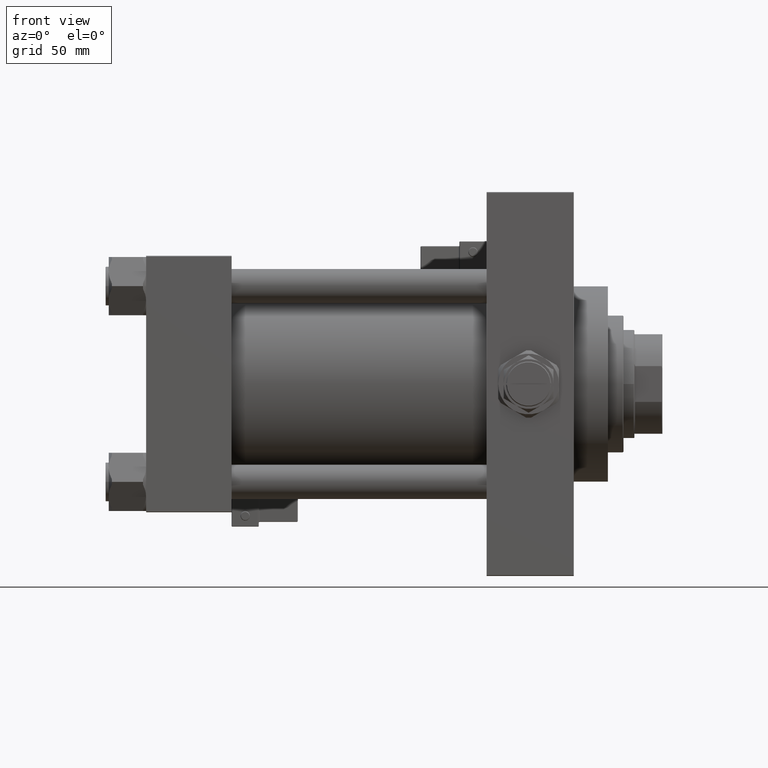
[diagram: clean part render]
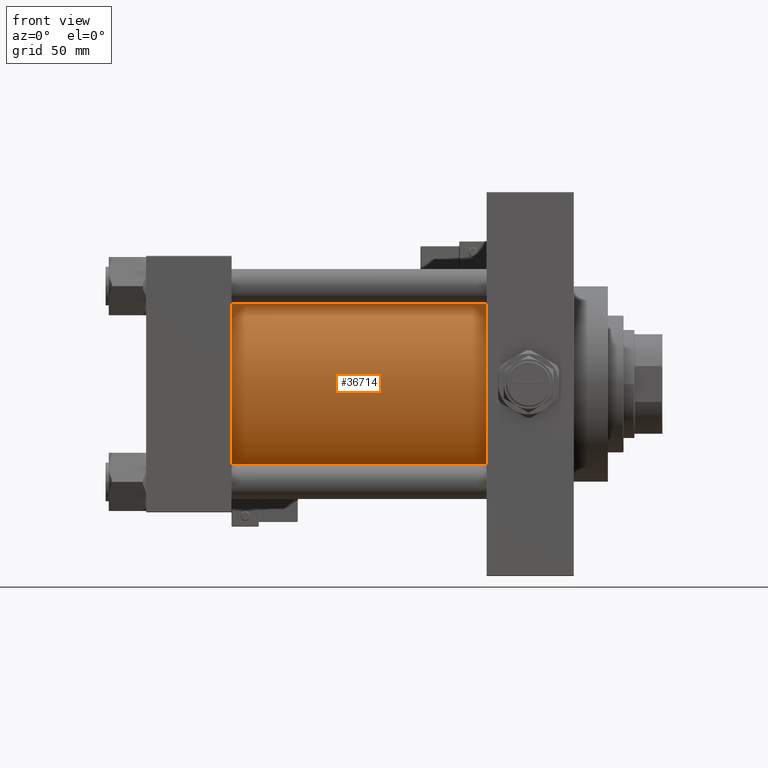
[diagram: same view with one face highlighted and labeled with its STEP entity id]
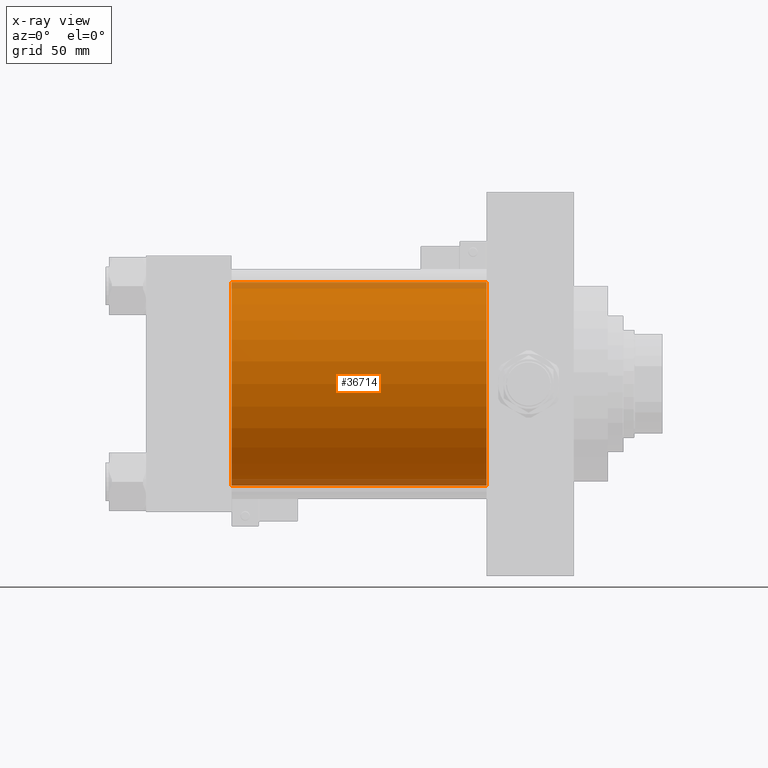
[diagram: x-ray of the same camera — body ghosted, the highlighted face saturated]
A machine part, front view. The second image highlights one B-rep face of the part: STEP entity #36714.
The next image is the same camera in x-ray: the body ghosted, the highlighted face saturated — about 6% of this face is hidden behind the body in this view.
In plain terms, the highlighted cylindrical surface (partial cylindrical patch) has radius 65.5 mm, axis along (-1, -0, -0).
Its self-contained STEP definition (entity closure, byte-faithful):
#402 = VERTEX_POINT ( 'NONE', #31554 ) ;
#928 = CARTESIAN_POINT ( 'NONE',  ( 54.99999999999999289, -2.602085213965210642E-15, 0.000000000000000000 ) ) ;
#1482 = VERTEX_POINT ( 'NONE', #23220 ) ;
#2633 = CARTESIAN_POINT ( 'NONE',  ( 219.0000000000000000, 5.419351320449954973E-15, -65.50000000000001421 ) ) ;
#2948 = DIRECTION ( 'NONE',  ( 0.000000000000000000, 0.000000000000000000, 1.000000000000000000 ) ) ;
#3754 = LINE ( 'NONE', #43409, #43405 ) ;
#6001 = AXIS2_PLACEMENT_3D ( 'NONE', #9406, #48293, #33414 ) ;
#6867 = CARTESIAN_POINT ( 'NONE',  ( 219.0000000000000000, -2.602085213965210642E-15, 0.000000000000000000 ) ) ;
#7153 = DIRECTION ( 'NONE',  ( -1.000000000000000000, -0.000000000000000000, -0.000000000000000000 ) ) ;
#7472 = ORIENTED_EDGE ( 'NONE', *, *, #26093, .F. ) ;
#7640 = CARTESIAN_POINT ( 'NONE',  ( 54.99999999999999289, 5.419351320449954973E-15, -65.50000000000001421 ) ) ;
#9406 = CARTESIAN_POINT ( 'NONE',  ( 219.0000000000000000, -2.602085213965210642E-15, 0.000000000000000000 ) ) ;
#13120 = EDGE_LOOP ( 'NONE', ( #26748, #7472, #32037, #23436 ) ) ;
#16146 = VERTEX_POINT ( 'NONE', #48715 ) ;
#16343 = DIRECTION ( 'NONE',  ( 1.000000000000000000, -0.000000000000000000, -0.000000000000000000 ) ) ;
#21109 = EDGE_CURVE ( 'NONE', #1482, #16146, #3754, .T. ) ;
#23220 = CARTESIAN_POINT ( 'NONE',  ( 219.0000000000000000, -2.602085213965210642E-15, 65.50000000000001421 ) ) ;
#23436 = ORIENTED_EDGE ( 'NONE', *, *, #29517, .T. ) ;
#24358 = CIRCLE ( 'NONE', #6001, 65.50000000000001421 ) ;
#25070 = EDGE_CURVE ( 'NONE', #402, #34715, #50115, .T. ) ;
#26093 = EDGE_CURVE ( 'NONE', #1482, #402, #24358, .T. ) ;
#26715 = FACE_OUTER_BOUND ( 'NONE', #13120, .T. ) ;
#26748 = ORIENTED_EDGE ( 'NONE', *, *, #25070, .F. ) ;
#28639 = CIRCLE ( 'NONE', #37779, 65.50000000000001421 ) ;
#29517 = EDGE_CURVE ( 'NONE', #16146, #34715, #28639, .T. ) ;
#31554 = CARTESIAN_POINT ( 'NONE',  ( 219.0000000000000000, 5.419351320449954973E-15, -65.50000000000001421 ) ) ;
#32037 = ORIENTED_EDGE ( 'NONE', *, *, #21109, .T. ) ;
#33414 = DIRECTION ( 'NONE',  ( 0.000000000000000000, 0.000000000000000000, -1.000000000000000000 ) ) ;
#33477 = VECTOR ( 'NONE', #42295, 1000.000000000000000 ) ;
#34715 = VERTEX_POINT ( 'NONE', #7640 ) ;
#36714 = ADVANCED_FACE ( 'NONE', ( #26715 ), #42607, .T. ) ;
#37779 = AXIS2_PLACEMENT_3D ( 'NONE', #928, #16343, #40340 ) ;
#38032 = AXIS2_PLACEMENT_3D ( 'NONE', #6867, #38694, #2948 ) ;
#38694 = DIRECTION ( 'NONE',  ( -1.000000000000000000, -0.000000000000000000, -0.000000000000000000 ) ) ;
#40340 = DIRECTION ( 'NONE',  ( 0.000000000000000000, 0.000000000000000000, 1.000000000000000000 ) ) ;
#42295 = DIRECTION ( 'NONE',  ( -1.000000000000000000, -0.000000000000000000, -0.000000000000000000 ) ) ;
#42607 = CYLINDRICAL_SURFACE ( 'NONE', #38032, 65.50000000000001421 ) ;
#43405 = VECTOR ( 'NONE', #7153, 1000.000000000000000 ) ;
#43409 = CARTESIAN_POINT ( 'NONE',  ( 219.0000000000000000, -2.602085213965210642E-15, 65.50000000000001421 ) ) ;
#48293 = DIRECTION ( 'NONE',  ( 1.000000000000000000, 0.000000000000000000, 0.000000000000000000 ) ) ;
#48715 = CARTESIAN_POINT ( 'NONE',  ( 54.99999999999999289, -2.602085213965210642E-15, 65.50000000000001421 ) ) ;
#50115 = LINE ( 'NONE', #2633, #33477 ) ;